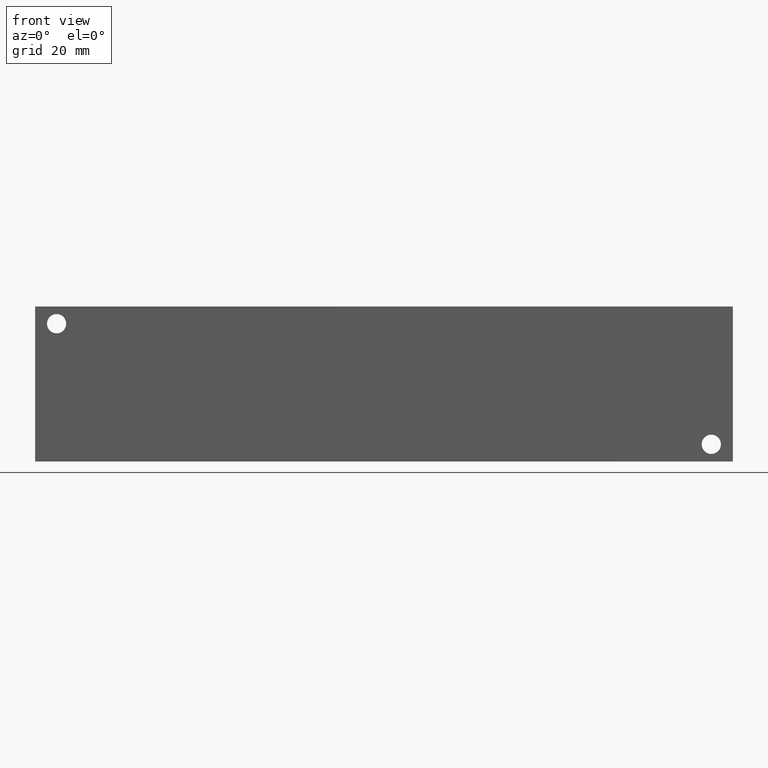
[diagram: clean part render]
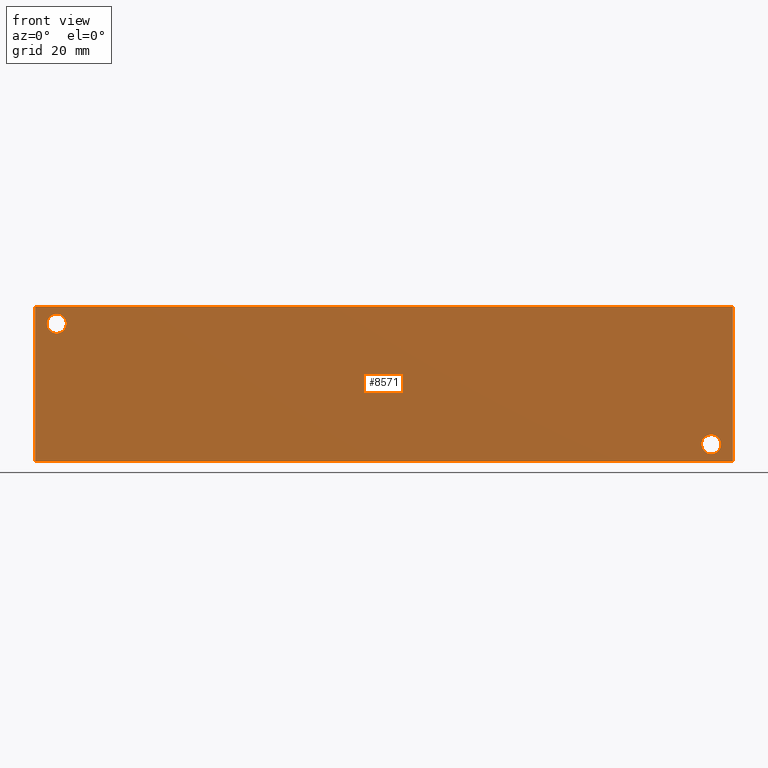
[diagram: same view with one face highlighted and labeled with its STEP entity id]
A machine part, front view. The second image highlights one B-rep face of the part: STEP entity #8571.
In plain terms, the highlighted planar face has unit normal (0, -1, 0).
Its self-contained STEP definition (entity closure, byte-faithful):
#212=CIRCLE('',#8942,3.5687);
#213=CIRCLE('',#8943,3.5687);
#215=CIRCLE('',#8951,3.5687);
#216=CIRCLE('',#8952,3.5687);
#382=FACE_BOUND('',#1565,.T.);
#383=FACE_BOUND('',#1566,.T.);
#628=PLANE('',#9134);
#1066=FACE_OUTER_BOUND('',#1564,.T.);
#1564=EDGE_LOOP('',(#7708,#7709,#7710,#7711));
#1565=EDGE_LOOP('',(#7712,#7713));
#1566=EDGE_LOOP('',(#7714,#7715));
#1852=LINE('',#13108,#2608);
#2324=LINE('',#14977,#3080);
#2329=LINE('',#14986,#3085);
#2330=LINE('',#14988,#3086);
#2608=VECTOR('',#9562,10.);
#3080=VECTOR('',#10976,10.);
#3085=VECTOR('',#10985,10.);
#3086=VECTOR('',#10988,10.);
#3627=VERTEX_POINT('',#13106);
#3628=VERTEX_POINT('',#13107);
#4016=VERTEX_POINT('',#14593);
#4017=VERTEX_POINT('',#14594);
#4021=VERTEX_POINT('',#14609);
#4022=VERTEX_POINT('',#14610);
#4130=VERTEX_POINT('',#14975);
#4132=VERTEX_POINT('',#14984);
#4592=EDGE_CURVE('',#3627,#3628,#1852,.T.);
#5148=EDGE_CURVE('',#4016,#4017,#212,.T.);
#5149=EDGE_CURVE('',#4017,#4016,#213,.T.);
#5157=EDGE_CURVE('',#4021,#4022,#215,.T.);
#5158=EDGE_CURVE('',#4022,#4021,#216,.T.);
#5326=EDGE_CURVE('',#4130,#3627,#2324,.T.);
#5331=EDGE_CURVE('',#4132,#3628,#2329,.T.);
#5332=EDGE_CURVE('',#4130,#4132,#2330,.T.);
#7708=ORIENTED_EDGE('',*,*,#5332,.T.);
#7709=ORIENTED_EDGE('',*,*,#5331,.T.);
#7710=ORIENTED_EDGE('',*,*,#4592,.F.);
#7711=ORIENTED_EDGE('',*,*,#5326,.F.);
#7712=ORIENTED_EDGE('',*,*,#5148,.T.);
#7713=ORIENTED_EDGE('',*,*,#5149,.T.);
#7714=ORIENTED_EDGE('',*,*,#5157,.T.);
#7715=ORIENTED_EDGE('',*,*,#5158,.T.);
#8571=ADVANCED_FACE('',(#1066,#382,#383),#628,.T.);
#8942=AXIS2_PLACEMENT_3D('',#14595,#10539,#10540);
#8943=AXIS2_PLACEMENT_3D('',#14596,#10541,#10542);
#8951=AXIS2_PLACEMENT_3D('',#14611,#10559,#10560);
#8952=AXIS2_PLACEMENT_3D('',#14612,#10561,#10562);
#9134=AXIS2_PLACEMENT_3D('',#14987,#10986,#10987);
#9562=DIRECTION('',(1.,0.,0.));
#10539=DIRECTION('center_axis',(0.,1.,0.));
#10540=DIRECTION('ref_axis',(1.,0.,0.));
#10541=DIRECTION('center_axis',(0.,1.,0.));
#10542=DIRECTION('ref_axis',(1.,0.,0.));
#10559=DIRECTION('center_axis',(0.,1.,0.));
#10560=DIRECTION('ref_axis',(1.,0.,0.));
#10561=DIRECTION('center_axis',(0.,1.,0.));
#10562=DIRECTION('ref_axis',(1.,0.,0.));
#10976=DIRECTION('',(0.,0.,1.));
#10985=DIRECTION('',(0.,0.,1.));
#10986=DIRECTION('center_axis',(0.,-1.,0.));
#10987=DIRECTION('ref_axis',(1.,0.,0.));
#10988=DIRECTION('',(1.,0.,0.));
#13106=CARTESIAN_POINT('',(0.,0.,57.15));
#13107=CARTESIAN_POINT('',(257.175,0.,57.15));
#13108=CARTESIAN_POINT('',(0.,0.,57.15));
#14593=CARTESIAN_POINT('',(11.4935,0.,50.8));
#14594=CARTESIAN_POINT('',(4.3561,0.,50.8));
#14595=CARTESIAN_POINT('Origin',(7.9248,0.,50.8));
#14596=CARTESIAN_POINT('Origin',(7.9248,0.,50.8));
#14609=CARTESIAN_POINT('',(252.7935,0.,6.35));
#14610=CARTESIAN_POINT('',(245.6561,0.,6.35));
#14611=CARTESIAN_POINT('Origin',(249.2248,0.,6.35));
#14612=CARTESIAN_POINT('Origin',(249.2248,0.,6.35));
#14975=CARTESIAN_POINT('',(0.,0.,0.));
#14977=CARTESIAN_POINT('',(0.,0.,0.));
#14984=CARTESIAN_POINT('',(257.175,0.,0.));
#14986=CARTESIAN_POINT('',(257.175,0.,0.));
#14987=CARTESIAN_POINT('Origin',(0.,0.,0.));
#14988=CARTESIAN_POINT('',(0.,0.,0.));